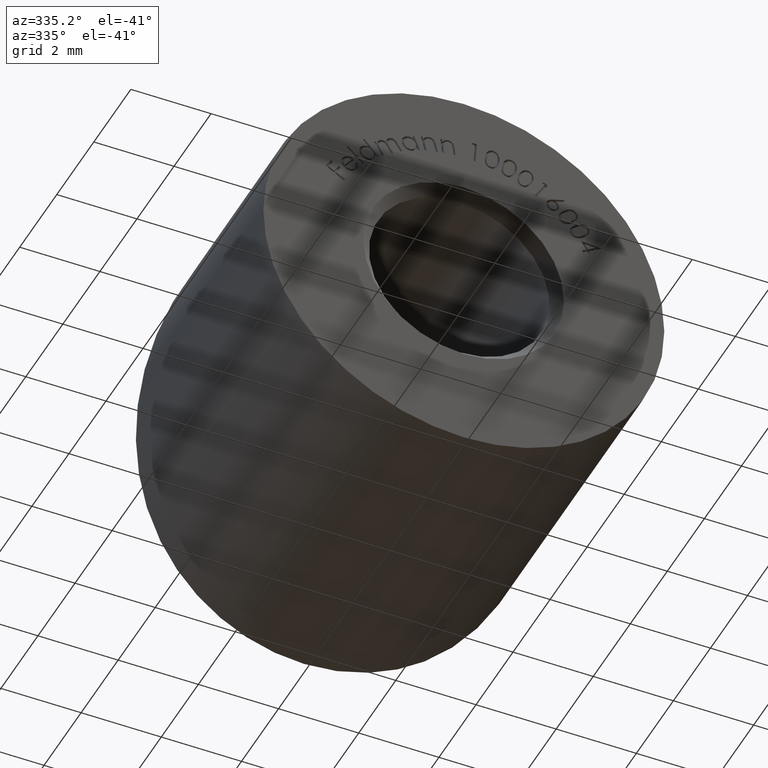
[diagram: clean part render]
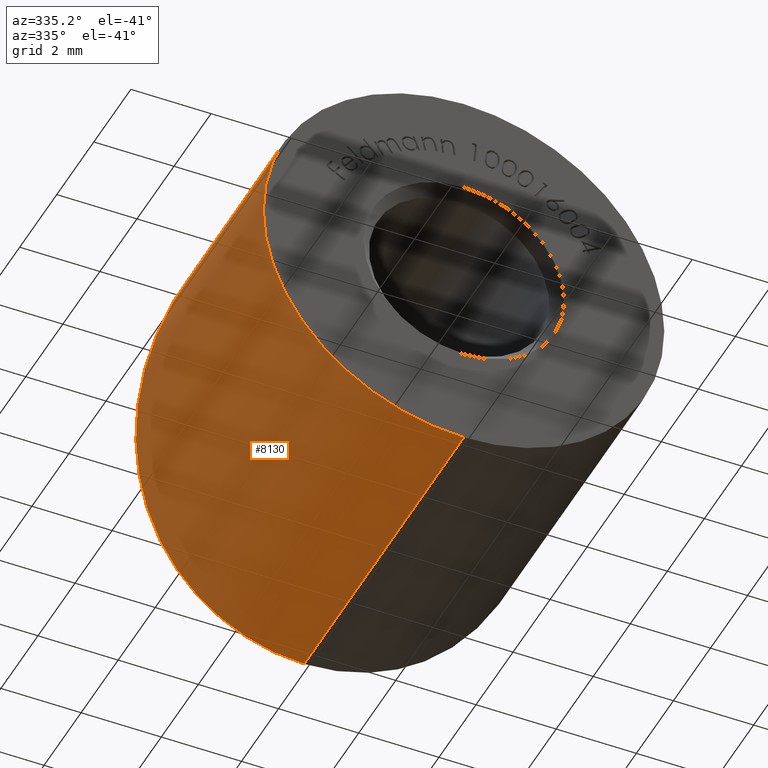
[diagram: same view with one face highlighted and labeled with its STEP entity id]
A machine part, auxiliary view. The second image highlights one B-rep face of the part: STEP entity #8130.
In plain terms, the highlighted cylindrical surface (partial cylindrical patch) has radius 5 mm, axis along (-0, -1, -0).
Its self-contained STEP definition (entity closure, byte-faithful):
#320 = CARTESIAN_POINT ( 'NONE',  ( -0.7058481519334226500, 3.216155511624507300, 4.961990480280592300 ) ) ;
#443 = B_SPLINE_CURVE_WITH_KNOTS ( 'NONE', 3,
 ( #9467, #1335, #320, #7496, #12600, #12512, #11573, #2349, #5533, #10453, #12687, #8610, #10636, #4523, #8570, #5359, #4335, #1432, #6556, #2471, #6509, #3350, #12558, #11527, #7408, #4431, #9561, #6380, #9603, #3440, #4473, #499, #5405, #7583, #1514, #3480, #6421, #7453, #10591, #1382, #8485, #5446 ),
 .UNSPECIFIED., .F., .F.,
 ( 4, 2, 2, 2, 2, 2, 2, 2, 2, 2, 2, 2, 2, 2, 2, 2, 2, 2, 2, 2, 4 ),
 ( 0.01679224387565985200, 0.01784050647348596800, 0.01836463777239902600, 0.01888876907131208400, 0.01993703166913819700, 0.02098529426696431300, 0.02203355686479042600, 0.02308181946261653900, 0.02413008206044265100, 0.02517834465826876400, 0.02622660725609488000, 0.02727486985392099700, 0.02779900115283405100, 0.02832313245174710600, 0.02937139504957322200, 0.03041965764739933100, 0.03146792024522544100, 0.03199205154413849900, 0.03251618284305155700, 0.03304031414196460800, 0.03356444544087766600 ),
 .UNSPECIFIED. ) ;
#449 = ORIENTED_EDGE ( 'NONE', *, *, #7351, .T. ) ;
#499 = CARTESIAN_POINT ( 'NONE',  ( -2.667107652916312200, 8.393427653062831300, -4.243253665865986500 ) ) ;
#640 = CARTESIAN_POINT ( 'NONE',  ( 0.0000000000000000000, 0.0000000000000000000, -5.000000000000000000 ) ) ;
#674 = CARTESIAN_POINT ( 'NONE',  ( 0.0000000000000000000, 8.614778498192214000, -5.000000000000000000 ) ) ;
#1335 = CARTESIAN_POINT ( 'NONE',  ( -0.3498617074117833500, 3.185221501807819600, 5.000000000000000900 ) ) ;
#1382 = CARTESIAN_POINT ( 'NONE',  ( -0.3556490442128750200, 8.612163505788371900, -4.990452564133123700 ) ) ;
#1432 = CARTESIAN_POINT ( 'NONE',  ( -4.944566484784791900, 6.130060332143707500, 0.8013914894534308600 ) ) ;
#1514 = CARTESIAN_POINT ( 'NONE',  ( -1.722985340201996800, 8.529327074467103000, -4.697021669298515600 ) ) ;
#2349 = CARTESIAN_POINT ( 'NONE',  ( -2.325314560257298400, 3.632753745350179000, 4.439088081614849900 ) ) ;
#2471 = CARTESIAN_POINT ( 'NONE',  ( -5.008150024463934500, 6.642682808234225100, -0.1103364883539941500 ) ) ;
#2667 = VECTOR ( 'NONE', #11444, 1000.000000000000000 ) ;
#2951 = AXIS2_PLACEMENT_3D ( 'NONE', #7636, #10740, #4620 ) ;
#2963 = LINE ( 'NONE', #4064, #2667 ) ;
#3018 = EDGE_LOOP ( 'NONE', ( #8750, #11238, #449, #6001 ) ) ;
#3350 = CARTESIAN_POINT ( 'NONE',  ( -4.899386654201402200, 7.120986283091761000, -1.046147634951464900 ) ) ;
#3421 = VERTEX_POINT ( 'NONE', #12985 ) ;
#3440 = CARTESIAN_POINT ( 'NONE',  ( -3.483322721364189500, 8.182619837734865300, -3.602880510657019600 ) ) ;
#3480 = CARTESIAN_POINT ( 'NONE',  ( -1.390017833506200600, 8.560655914654157400, -4.806094200798143300 ) ) ;
#3662 = CARTESIAN_POINT ( 'NONE',  ( 0.0000000000000000000, 15.00000000000000000, -5.000000000000000000 ) ) ;
#3982 = AXIS2_PLACEMENT_3D ( 'NONE', #6805, #5948, #9973 ) ;
#4064 = CARTESIAN_POINT ( 'NONE',  ( 6.123233995736766300E-016, 15.00000000000000000, 5.000000000000000000 ) ) ;
#4335 = CARTESIAN_POINT ( 'NONE',  ( -4.812382723190125900, 5.774936929762443300, 1.389941929494401300 ) ) ;
#4431 = CARTESIAN_POINT ( 'NONE',  ( -4.465351775904396800, 7.665730029250136500, -2.255584958112524200 ) ) ;
#4473 = CARTESIAN_POINT ( 'NONE',  ( -3.223828311583363700, 8.261941181390735500, -3.837394418425537100 ) ) ;
#4523 = CARTESIAN_POINT ( 'NONE',  ( -4.340454597035155800, 5.052516346741605900, 2.500564132413590500 ) ) ;
#4574 = EDGE_CURVE ( 'NONE', #3421, #10997, #2963, .T. ) ;
#4620 = DIRECTION ( 'NONE',  ( 0.0000000000000000000, 0.0000000000000000000, 1.000000000000000000 ) ) ;
#4690 = FACE_OUTER_BOUND ( 'NONE', #3018, .T. ) ;
#5359 = CARTESIAN_POINT ( 'NONE',  ( -4.718696775755631700, 5.592205225199277800, 1.680690167638043500 ) ) ;
#5405 = CARTESIAN_POINT ( 'NONE',  ( -2.368302114638064300, 8.446707435417440700, -4.417489731049448300 ) ) ;
#5446 = CARTESIAN_POINT ( 'NONE',  ( 0.0000000000000000000, 8.614778498192214000, -5.000000000000000000 ) ) ;
#5533 = CARTESIAN_POINT ( 'NONE',  ( -2.610149016335549200, 3.759398013190548700, 4.276956456200276000 ) ) ;
#5948 = DIRECTION ( 'NONE',  ( -0.0000000000000000000, -1.000000000000000000, -0.0000000000000000000 ) ) ;
#5974 = CARTESIAN_POINT ( 'NONE',  ( 6.123233995736766300E-016, 0.0000000000000000000, 5.000000000000000000 ) ) ;
#6001 = ORIENTED_EDGE ( 'NONE', *, *, #6858, .T. ) ;
#6380 = CARTESIAN_POINT ( 'NONE',  ( -4.133892296706942000, 7.899988698148679800, -2.832162982368097800 ) ) ;
#6421 = CARTESIAN_POINT ( 'NONE',  ( -1.221307782056150000, 8.573532835596935800, -4.851697274634448200 ) ) ;
#6509 = CARTESIAN_POINT ( 'NONE',  ( -4.991724640095528200, 6.809240050268025300, -0.4255579619094396700 ) ) ;
#6556 = CARTESIAN_POINT ( 'NONE',  ( -4.984195146319810200, 6.303852451415509400, 0.5015371886534908400 ) ) ;
#6805 = CARTESIAN_POINT ( 'NONE',  ( 0.0000000000000000000, 15.00000000000000000, 0.0000000000000000000 ) ) ;
#6858 = EDGE_CURVE ( 'NONE', #7314, #10997, #9806, .T. ) ;
#7314 = VERTEX_POINT ( 'NONE', #640 ) ;
#7351 = EDGE_CURVE ( 'NONE', #9460, #7314, #11241, .T. ) ;
#7408 = CARTESIAN_POINT ( 'NONE',  ( -4.603880599017582400, 7.538330369818186000, -1.957374112382591600 ) ) ;
#7453 = CARTESIAN_POINT ( 'NONE',  ( -0.8794863930998804100, 8.594116897963633800, -4.925145970177778700 ) ) ;
#7496 = CARTESIAN_POINT ( 'NONE',  ( -1.213100997425749400, 3.303418773897536900, 4.853687129908604600 ) ) ;
#7583 = CARTESIAN_POINT ( 'NONE',  ( -1.888262074986097700, 8.510728444085184900, -4.633058810731946600 ) ) ;
#7636 = CARTESIAN_POINT ( 'NONE',  ( 0.0000000000000000000, 0.0000000000000000000, 0.0000000000000000000 ) ) ;
#8130 = ADVANCED_FACE ( 'NONE', ( #4690 ), #11216, .T. ) ;
#8485 = CARTESIAN_POINT ( 'NONE',  ( -0.1772370449155152800, 8.614778498192215700, -5.000000000000000900 ) ) ;
#8570 = CARTESIAN_POINT ( 'NONE',  ( -4.482672454318922900, 5.231382487099465600, 2.235277693802751200 ) ) ;
#8610 = CARTESIAN_POINT ( 'NONE',  ( -3.811695954192016300, 4.526784290373966800, 3.250774175836194300 ) ) ;
#8750 = ORIENTED_EDGE ( 'NONE', *, *, #4574, .F. ) ;
#9460 = VERTEX_POINT ( 'NONE', #674 ) ;
#9467 = CARTESIAN_POINT ( 'NONE',  ( 6.123236332379361800E-016, 3.185221501807822300, 5.000000000000000000 ) ) ;
#9561 = CARTESIAN_POINT ( 'NONE',  ( -4.387506741820114800, 7.727122586233368100, -2.403609319409110200 ) ) ;
#9603 = CARTESIAN_POINT ( 'NONE',  ( -3.936600413930698000, 8.001906885738835100, -3.101203369062541800 ) ) ;
#9806 = CIRCLE ( 'NONE', #2951, 5.000000000000000000 ) ;
#9973 = DIRECTION ( 'NONE',  ( 0.0000000000000000000, 0.0000000000000000000, -1.000000000000000000 ) ) ;
#10453 = CARTESIAN_POINT ( 'NONE',  ( -3.140915997487697500, 4.044673401268689800, 3.903829032172968300 ) ) ;
#10591 = CARTESIAN_POINT ( 'NONE',  ( -0.7063753060370024900, 8.601823891253825800, -4.952992728092128900 ) ) ;
#10636 = CARTESIAN_POINT ( 'NONE',  ( -4.005630329820677500, 4.700578686324041300, 3.007871797477021000 ) ) ;
#10740 = DIRECTION ( 'NONE',  ( 0.0000000000000000000, 1.000000000000000000, 0.0000000000000000000 ) ) ;
#10997 = VERTEX_POINT ( 'NONE', #5974 ) ;
#11069 = DIRECTION ( 'NONE',  ( -0.0000000000000000000, -1.000000000000000000, -0.0000000000000000000 ) ) ;
#11216 = CYLINDRICAL_SURFACE ( 'NONE', #3982, 5.000000000000000000 ) ;
#11238 = ORIENTED_EDGE ( 'NONE', *, *, #12934, .T. ) ;
#11241 = LINE ( 'NONE', #3662, #11407 ) ;
#11407 = VECTOR ( 'NONE', #11069, 1000.000000000000000 ) ;
#11444 = DIRECTION ( 'NONE',  ( -0.0000000000000000000, -1.000000000000000000, -0.0000000000000000000 ) ) ;
#11527 = CARTESIAN_POINT ( 'NONE',  ( -4.664789786753020800, 7.472299477393922200, -1.807060204891239600 ) ) ;
#11573 = CARTESIAN_POINT ( 'NONE',  ( -1.864825049394035500, 3.472327264522075700, 4.642259712173852500 ) ) ;
#12512 = CARTESIAN_POINT ( 'NONE',  ( -1.704735122216527900, 3.423592339893295900, 4.703529440854115500 ) ) ;
#12558 = CARTESIAN_POINT ( 'NONE',  ( -4.824141422848045500, 7.267149815700775200, -1.352989610879977300 ) ) ;
#12600 = CARTESIAN_POINT ( 'NONE',  ( -1.379013131644242200, 3.339233457470183200, 4.809119859252084500 ) ) ;
#12687 = CARTESIAN_POINT ( 'NONE',  ( -3.379862567546181800, 4.199546400499531100, 3.697713863184576500 ) ) ;
#12934 = EDGE_CURVE ( 'NONE', #3421, #9460, #443, .T. ) ;
#12985 = CARTESIAN_POINT ( 'NONE',  ( 6.123236332379361800E-016, 3.185221501807822300, 5.000000000000000000 ) ) ;